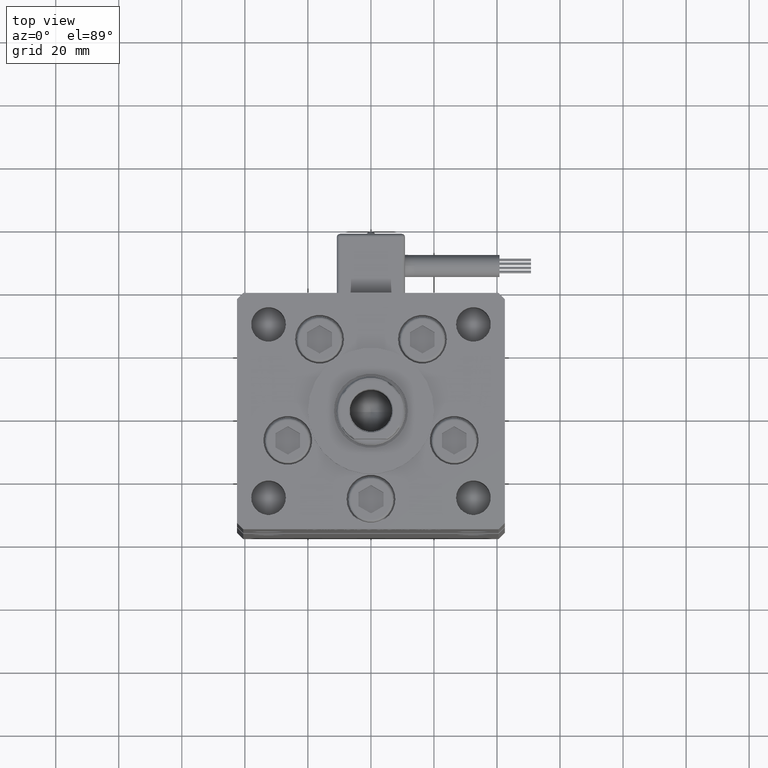
[diagram: clean part render]
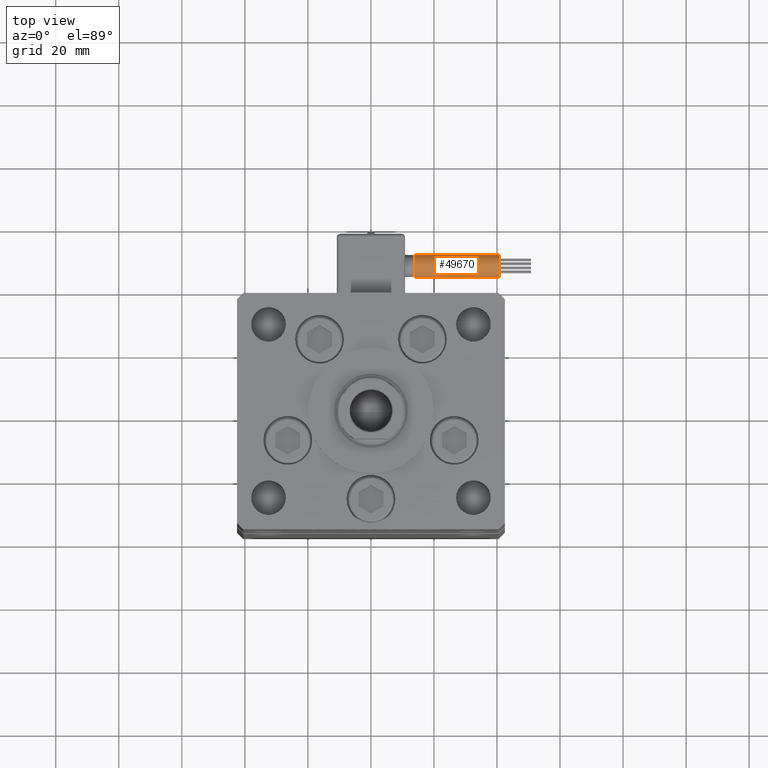
[diagram: same view with one face highlighted and labeled with its STEP entity id]
A machine part, top view. The second image highlights one B-rep face of the part: STEP entity #49670.
In plain terms, the highlighted cylindrical surface (edge-blend (fillet) strip) has radius 3.5 mm, axis along (1, -0, 0).
Its self-contained STEP definition (entity closure, byte-faithful):
#12 = CARTESIAN_POINT ( 'NONE',  ( 13.79999999999999893, 42.00000000000000000, -65.00000000000000000 ) ) ;
#144 = AXIS2_PLACEMENT_3D ( 'NONE', #29569, #38901, #55958 ) ;
#899 = CARTESIAN_POINT ( 'NONE',  ( 40.80000000000000426, 45.50000000000000711, -65.00000000000000000 ) ) ;
#1510 = LINE ( 'NONE', #4642, #23572 ) ;
#1671 = EDGE_LOOP ( 'NONE', ( #14384, #32033, #32290, #11460, #5362 ) ) ;
#4642 = CARTESIAN_POINT ( 'NONE',  ( 13.80000000000000071, 45.50000000000000711, -65.00000000000000000 ) ) ;
#5362 = ORIENTED_EDGE ( 'NONE', *, *, #44462, .F. ) ;
#7687 = VERTEX_POINT ( 'NONE', #50342 ) ;
#10664 = DIRECTION ( 'NONE',  ( 1.000000000000000000, 0.000000000000000000, 2.220446049250000002E-16 ) ) ;
#11098 = DIRECTION ( 'NONE',  ( 0.000000000000000000, 0.000000000000000000, -1.000000000000000000 ) ) ;
#11398 = VERTEX_POINT ( 'NONE', #43615 ) ;
#11460 = ORIENTED_EDGE ( 'NONE', *, *, #29276, .T. ) ;
#14384 = ORIENTED_EDGE ( 'NONE', *, *, #51836, .F. ) ;
#16053 = LINE ( 'NONE', #33613, #29274 ) ;
#17348 = DIRECTION ( 'NONE',  ( -4.956352788505158337E-16, -1.000000000000000000, 0.000000000000000000 ) ) ;
#19958 = AXIS2_PLACEMENT_3D ( 'NONE', #36471, #10664, #32494 ) ;
#20728 = EDGE_CURVE ( 'NONE', #11398, #7687, #55268, .T. ) ;
#23572 = VECTOR ( 'NONE', #45195, 1000.000000000000000 ) ;
#24836 = DIRECTION ( 'NONE',  ( 1.000000000000000000, -2.599999999999999847E-16, 2.220446049250000002E-16 ) ) ;
#25703 = EDGE_CURVE ( 'NONE', #7687, #30016, #51806, .T. ) ;
#25746 = VERTEX_POINT ( 'NONE', #30675 ) ;
#29274 = VECTOR ( 'NONE', #24836, 1000.000000000000000 ) ;
#29276 = EDGE_CURVE ( 'NONE', #30016, #25746, #16053, .T. ) ;
#29569 = CARTESIAN_POINT ( 'NONE',  ( 13.79999999999999893, 42.00000000000000000, -65.00000000000000000 ) ) ;
#30016 = VERTEX_POINT ( 'NONE', #33622 ) ;
#30461 = VERTEX_POINT ( 'NONE', #899 ) ;
#30675 = CARTESIAN_POINT ( 'NONE',  ( 40.80000000000000426, 38.50000000000000000, -65.00000000000000000 ) ) ;
#32033 = ORIENTED_EDGE ( 'NONE', *, *, #20728, .T. ) ;
#32290 = ORIENTED_EDGE ( 'NONE', *, *, #25703, .T. ) ;
#32494 = DIRECTION ( 'NONE',  ( 0.000000000000000000, 0.000000000000000000, -1.000000000000000000 ) ) ;
#33613 = CARTESIAN_POINT ( 'NONE',  ( 13.79999999999999716, 38.50000000000000000, -65.00000000000000000 ) ) ;
#33622 = CARTESIAN_POINT ( 'NONE',  ( 13.79999999999999893, 38.50000000000000000, -65.00000000000000000 ) ) ;
#35468 = CYLINDRICAL_SURFACE ( 'NONE', #48832, 3.500000000000003109 ) ;
#36471 = CARTESIAN_POINT ( 'NONE',  ( 13.79999999999999893, 42.00000000000000000, -65.00000000000000000 ) ) ;
#38901 = DIRECTION ( 'NONE',  ( 1.000000000000000000, 0.000000000000000000, 2.220446049250000002E-16 ) ) ;
#41457 = CIRCLE ( 'NONE', #53232, 3.500000000000003109 ) ;
#43416 = FACE_OUTER_BOUND ( 'NONE', #1671, .T. ) ;
#43615 = CARTESIAN_POINT ( 'NONE',  ( 13.79999999999999893, 45.50000000000000711, -65.00000000000000000 ) ) ;
#44462 = EDGE_CURVE ( 'NONE', #30461, #25746, #41457, .T. ) ;
#45195 = DIRECTION ( 'NONE',  ( 1.000000000000000000, -2.599999999999999847E-16, 2.220446049250000002E-16 ) ) ;
#45699 = DIRECTION ( 'NONE',  ( 1.000000000000000000, 0.000000000000000000, 2.220446049250000002E-16 ) ) ;
#48832 = AXIS2_PLACEMENT_3D ( 'NONE', #12, #52804, #17348 ) ;
#49670 = ADVANCED_FACE ( 'NONE', ( #43416 ), #35468, .T. ) ;
#50247 = CARTESIAN_POINT ( 'NONE',  ( 40.80000000000000426, 42.00000000000000000, -65.00000000000000000 ) ) ;
#50342 = CARTESIAN_POINT ( 'NONE',  ( 13.79999999999999893, 41.99999999999999289, -61.50000000000000000 ) ) ;
#51806 = CIRCLE ( 'NONE', #144, 3.500000000000003109 ) ;
#51836 = EDGE_CURVE ( 'NONE', #11398, #30461, #1510, .T. ) ;
#52804 = DIRECTION ( 'NONE',  ( 1.000000000000000000, -2.599999999999999847E-16, 2.220446049250000002E-16 ) ) ;
#53232 = AXIS2_PLACEMENT_3D ( 'NONE', #50247, #45699, #11098 ) ;
#55268 = CIRCLE ( 'NONE', #19958, 3.500000000000003109 ) ;
#55958 = DIRECTION ( 'NONE',  ( 0.000000000000000000, 0.000000000000000000, -1.000000000000000000 ) ) ;